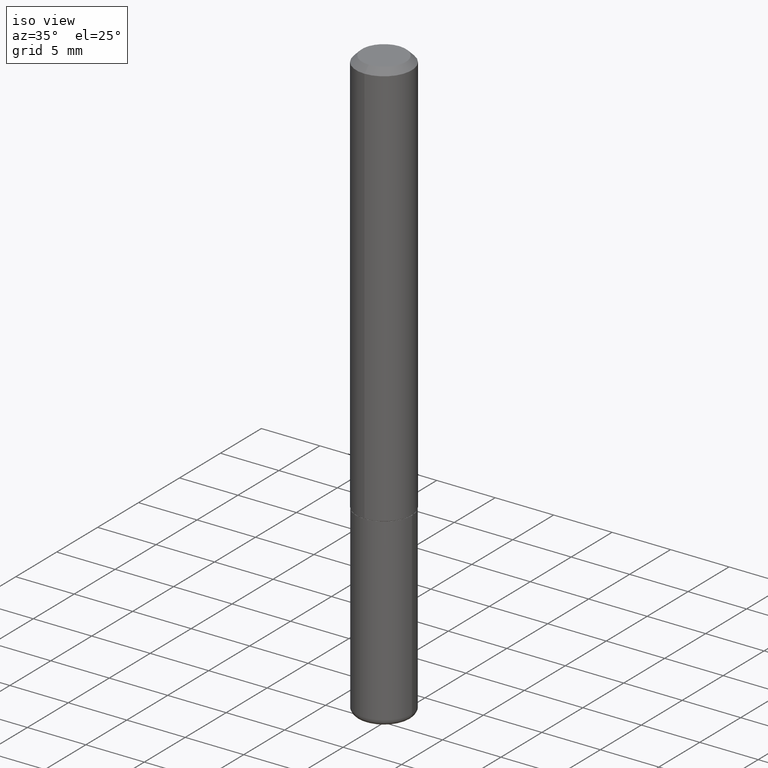
[diagram: clean part render]
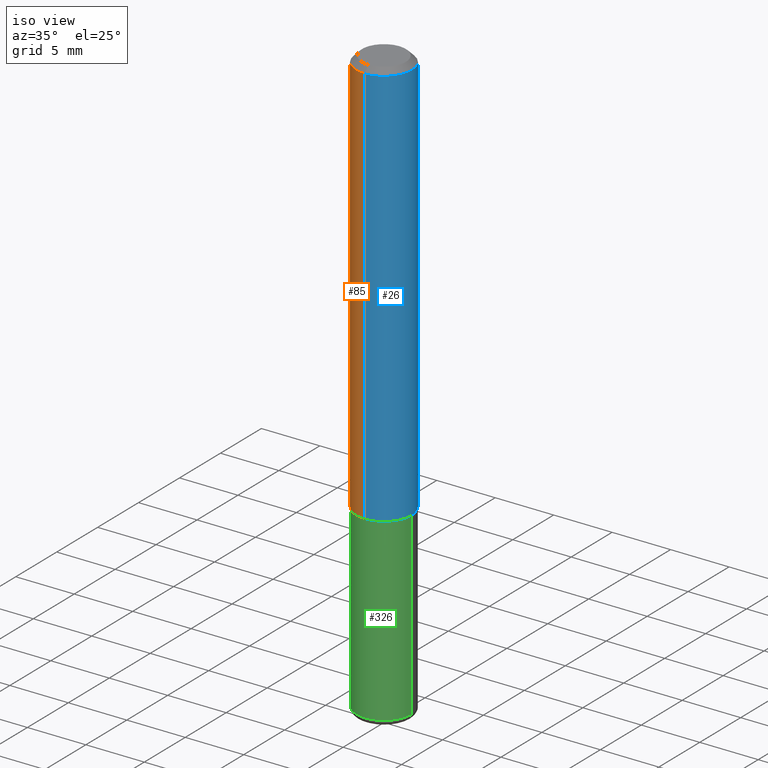
[diagram: same view with three faces highlighted in distinct colors, each labeled with its STEP entity id]
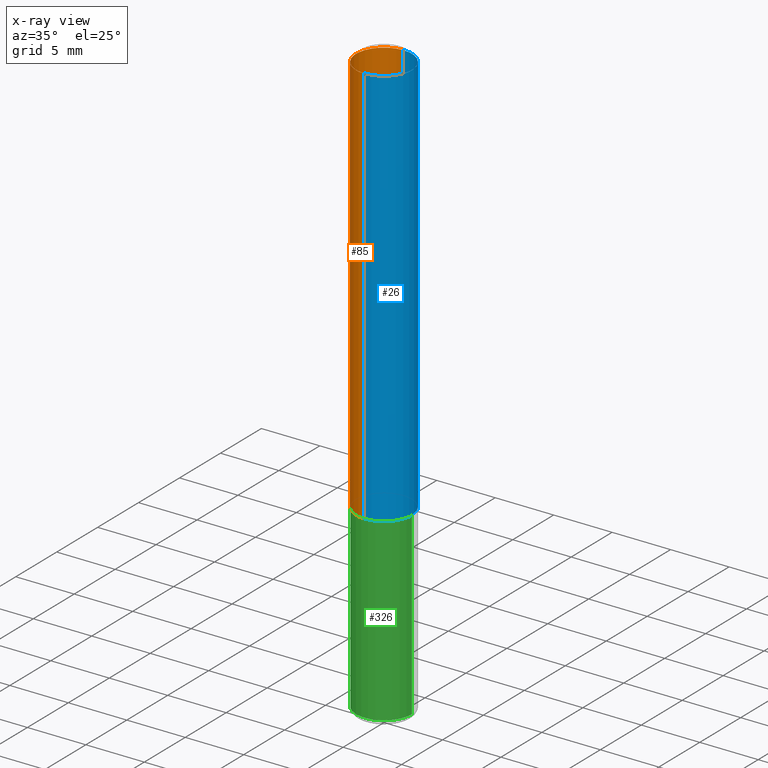
[diagram: x-ray of the same camera — body ghosted, the three highlighted faces saturated]
A machine part, iso view with three faces highlighted in distinct colors.
The next image is the same camera in x-ray (body ghosted, the three faces saturated) — at least one of them is partly hidden behind the body in this view.
Their STEP definitions:

[orange] entity #85 — the highlighted cylindrical surface (edge-blend (fillet) strip) has radius 2.3813 mm, axis along (-0, 0, 1).
#10 = EDGE_CURVE ( 'NONE', #324, #135, #134, .T. ) ;
#20 = CARTESIAN_POINT ( 'NONE',  ( -6.546527510330881944E-16, -0.09375000000000011102, 3.272963696799707431E-16 ) ) ;
#29 = VECTOR ( 'NONE', #310, 39.37007874015748143 ) ;
#31 = ORIENTED_EDGE ( 'NONE', *, *, #209, .T. ) ;
#43 = AXIS2_PLACEMENT_3D ( 'NONE', #378, #223, #414 ) ;
#80 = FACE_OUTER_BOUND ( 'NONE', #238, .T. ) ;
#85 = ADVANCED_FACE ( 'NONE', ( #80 ), #409, .T. ) ;
#86 = CARTESIAN_POINT ( 'NONE',  ( 6.661338147750946145E-16, 0.09375000000000011102, -3.272963696799707431E-16 ) ) ;
#103 = VERTEX_POINT ( 'NONE', #369 ) ;
#112 = DIRECTION ( 'NONE',  ( -2.445692304464510391E-29, 3.491161276586350254E-15, 1.000000000000000000 ) ) ;
#114 = DIRECTION ( 'NONE',  ( -6.982962677686265922E-15, -1.000000000000000000, 3.491161276586350648E-15 ) ) ;
#119 = EDGE_CURVE ( 'NONE', #153, #103, #403, .T. ) ;
#128 = AXIS2_PLACEMENT_3D ( 'NONE', #250, #307, #114 ) ;
#131 = EDGE_CURVE ( 'NONE', #135, #103, #207, .T. ) ;
#134 = LINE ( 'NONE', #86, #29 ) ;
#135 = VERTEX_POINT ( 'NONE', #246 ) ;
#153 = VERTEX_POINT ( 'NONE', #212 ) ;
#161 = AXIS2_PLACEMENT_3D ( 'NONE', #309, #112, #404 ) ;
#189 = ORIENTED_EDGE ( 'NONE', *, *, #119, .T. ) ;
#201 = ORIENTED_EDGE ( 'NONE', *, *, #131, .F. ) ;
#207 = CIRCLE ( 'NONE', #161, 0.09375000000000002776 ) ;
#209 = EDGE_CURVE ( 'NONE', #324, #153, #221, .T. ) ;
#212 = CARTESIAN_POINT ( 'NONE',  ( -6.546527510330552594E-16, -0.09375000000000499600, -1.373999999999999666 ) ) ;
#218 = DIRECTION ( 'NONE',  ( -2.445692304464510391E-29, 3.491161276586350254E-15, 1.000000000000000000 ) ) ;
#221 = CIRCLE ( 'NONE', #43, 0.09375000000000019429 ) ;
#223 = DIRECTION ( 'NONE',  ( -2.445692304464510391E-29, 3.491161276586350254E-15, 1.000000000000000000 ) ) ;
#238 = EDGE_LOOP ( 'NONE', ( #399, #31, #189, #201 ) ) ;
#246 = CARTESIAN_POINT ( 'NONE',  ( 6.546527510330880958E-16, 0.09374999999999995837, -0.02000000000000034736 ) ) ;
#250 = CARTESIAN_POINT ( 'NONE',  ( 0.000000000000000000, 0.000000000000000000, 0.000000000000000000 ) ) ;
#307 = DIRECTION ( 'NONE',  ( -2.445692304464510391E-29, 3.491161276586350254E-15, 1.000000000000000000 ) ) ;
#309 = CARTESIAN_POINT ( 'NONE',  ( 4.891384608929025126E-31, -6.982322553172705093E-17, -0.02000000000000001776 ) ) ;
#310 = DIRECTION ( 'NONE',  ( -2.445692304464510391E-29, 3.491161276586350254E-15, 1.000000000000000000 ) ) ;
#311 = CARTESIAN_POINT ( 'NONE',  ( 6.661338147751117722E-16, 0.09374999999999537870, -1.374000000000000110 ) ) ;
#324 = VERTEX_POINT ( 'NONE', #311 ) ;
#359 = VECTOR ( 'NONE', #218, 39.37007874015748143 ) ;
#369 = CARTESIAN_POINT ( 'NONE',  ( -6.431716872910806895E-16, -0.09375000000000009714, -0.01999999999999968817 ) ) ;
#378 = CARTESIAN_POINT ( 'NONE',  ( 3.360381226334237203E-29, -4.796855594029644698E-15, -1.373999999999999888 ) ) ;
#399 = ORIENTED_EDGE ( 'NONE', *, *, #10, .F. ) ;
#403 = LINE ( 'NONE', #20, #359 ) ;
#404 = DIRECTION ( 'NONE',  ( -6.982962677686265922E-15, -1.000000000000000000, 3.505871591869136910E-15 ) ) ;
#409 = CYLINDRICAL_SURFACE ( 'NONE', #128, 0.09375000000000011102 ) ;
#414 = DIRECTION ( 'NONE',  ( -6.982962677686266711E-15, -1.000000000000000000, 2.913971193241874850E-15 ) ) ;

[blue] entity #26 — the highlighted cylindrical surface (edge-blend (fillet) strip) has radius 2.3813 mm, axis along (-0, 0, 1).
#10 = EDGE_CURVE ( 'NONE', #324, #135, #134, .T. ) ;
#20 = CARTESIAN_POINT ( 'NONE',  ( -6.546527510330881944E-16, -0.09375000000000011102, 3.272963696799707431E-16 ) ) ;
#26 = ADVANCED_FACE ( 'NONE', ( #336 ), #83, .T. ) ;
#29 = VECTOR ( 'NONE', #310, 39.37007874015748143 ) ;
#30 = AXIS2_PLACEMENT_3D ( 'NONE', #54, #312, #291 ) ;
#35 = ORIENTED_EDGE ( 'NONE', *, *, #10, .T. ) ;
#49 = DIRECTION ( 'NONE',  ( -6.982962677686266711E-15, -1.000000000000000000, 2.913971193241874850E-15 ) ) ;
#54 = CARTESIAN_POINT ( 'NONE',  ( 4.891384608929025126E-31, -6.982322553172705093E-17, -0.02000000000000001776 ) ) ;
#81 = AXIS2_PLACEMENT_3D ( 'NONE', #279, #371, #49 ) ;
#83 = CYLINDRICAL_SURFACE ( 'NONE', #249, 0.09375000000000011102 ) ;
#86 = CARTESIAN_POINT ( 'NONE',  ( 6.661338147750946145E-16, 0.09375000000000011102, -3.272963696799707431E-16 ) ) ;
#100 = ORIENTED_EDGE ( 'NONE', *, *, #122, .T. ) ;
#103 = VERTEX_POINT ( 'NONE', #369 ) ;
#119 = EDGE_CURVE ( 'NONE', #153, #103, #403, .T. ) ;
#122 = EDGE_CURVE ( 'NONE', #153, #324, #374, .T. ) ;
#134 = LINE ( 'NONE', #86, #29 ) ;
#135 = VERTEX_POINT ( 'NONE', #246 ) ;
#137 = ORIENTED_EDGE ( 'NONE', *, *, #258, .F. ) ;
#142 = CARTESIAN_POINT ( 'NONE',  ( 0.000000000000000000, 0.000000000000000000, 0.000000000000000000 ) ) ;
#153 = VERTEX_POINT ( 'NONE', #212 ) ;
#198 = EDGE_LOOP ( 'NONE', ( #100, #35, #137, #230 ) ) ;
#212 = CARTESIAN_POINT ( 'NONE',  ( -6.546527510330552594E-16, -0.09375000000000499600, -1.373999999999999666 ) ) ;
#216 = DIRECTION ( 'NONE',  ( -2.445692304464510391E-29, 3.491161276586350254E-15, 1.000000000000000000 ) ) ;
#218 = DIRECTION ( 'NONE',  ( -2.445692304464510391E-29, 3.491161276586350254E-15, 1.000000000000000000 ) ) ;
#230 = ORIENTED_EDGE ( 'NONE', *, *, #119, .F. ) ;
#246 = CARTESIAN_POINT ( 'NONE',  ( 6.546527510330880958E-16, 0.09374999999999995837, -0.02000000000000034736 ) ) ;
#249 = AXIS2_PLACEMENT_3D ( 'NONE', #142, #216, #373 ) ;
#258 = EDGE_CURVE ( 'NONE', #103, #135, #308, .T. ) ;
#279 = CARTESIAN_POINT ( 'NONE',  ( 3.360381226334237203E-29, -4.796855594029644698E-15, -1.373999999999999888 ) ) ;
#291 = DIRECTION ( 'NONE',  ( -6.982962677686265922E-15, -1.000000000000000000, 3.505871591869136910E-15 ) ) ;
#308 = CIRCLE ( 'NONE', #30, 0.09375000000000002776 ) ;
#310 = DIRECTION ( 'NONE',  ( -2.445692304464510391E-29, 3.491161276586350254E-15, 1.000000000000000000 ) ) ;
#311 = CARTESIAN_POINT ( 'NONE',  ( 6.661338147751117722E-16, 0.09374999999999537870, -1.374000000000000110 ) ) ;
#312 = DIRECTION ( 'NONE',  ( -2.445692304464510391E-29, 3.491161276586350254E-15, 1.000000000000000000 ) ) ;
#324 = VERTEX_POINT ( 'NONE', #311 ) ;
#336 = FACE_OUTER_BOUND ( 'NONE', #198, .T. ) ;
#359 = VECTOR ( 'NONE', #218, 39.37007874015748143 ) ;
#369 = CARTESIAN_POINT ( 'NONE',  ( -6.431716872910806895E-16, -0.09375000000000009714, -0.01999999999999968817 ) ) ;
#371 = DIRECTION ( 'NONE',  ( -2.445692304464510391E-29, 3.491161276586350254E-15, 1.000000000000000000 ) ) ;
#373 = DIRECTION ( 'NONE',  ( -6.982962677686265922E-15, -1.000000000000000000, 3.491161276586350648E-15 ) ) ;
#374 = CIRCLE ( 'NONE', #81, 0.09375000000000019429 ) ;
#403 = LINE ( 'NONE', #20, #359 ) ;

[green] entity #326 — the highlighted cylindrical surface (edge-blend (fillet) strip) has radius 2.3813 mm, axis along (-0, 0, 1).
#8 = CIRCLE ( 'NONE', #51, 0.09375000000000002776 ) ;
#25 = CARTESIAN_POINT ( 'NONE',  ( -0.09375000000000001388, -5.190826131134282474E-15, -1.375000000000000000 ) ) ;
#51 = AXIS2_PLACEMENT_3D ( 'NONE', #276, #244, #362 ) ;
#91 = VERTEX_POINT ( 'NONE', #178 ) ;
#94 = DIRECTION ( 'NONE',  ( -2.445468806185136877E-29, 3.491481338843145188E-15, 1.000000000000000000 ) ) ;
#107 = EDGE_CURVE ( 'NONE', #340, #296, #120, .T. ) ;
#120 = LINE ( 'NONE', #143, #186 ) ;
#140 = ORIENTED_EDGE ( 'NONE', *, *, #107, .F. ) ;
#143 = CARTESIAN_POINT ( 'NONE',  ( -0.09375000000000002776, 6.661338147750941215E-16, -4.611501647113975397E-30 ) ) ;
#147 = CIRCLE ( 'NONE', #337, 0.09375000000000001388 ) ;
#150 = CARTESIAN_POINT ( 'NONE',  ( 0.000000000000000000, 0.000000000000000000, 0.000000000000000000 ) ) ;
#152 = EDGE_CURVE ( 'NONE', #340, #270, #8, .T. ) ;
#160 = ORIENTED_EDGE ( 'NONE', *, *, #265, .F. ) ;
#178 = CARTESIAN_POINT ( 'NONE',  ( 0.09375000000000001388, -5.455439591942412434E-15, -1.375000000000000000 ) ) ;
#183 = CARTESIAN_POINT ( 'NONE',  ( 3.362519608504562260E-29, -4.800786840909324930E-15, -1.375000000000000000 ) ) ;
#186 = VECTOR ( 'NONE', #282, 39.37007874015748143 ) ;
#193 = DIRECTION ( 'NONE',  ( -2.445468806185136597E-29, 3.491481338843145583E-15, 1.000000000000000000 ) ) ;
#229 = DIRECTION ( 'NONE',  ( 1.000000000000000000, -6.982962677686261189E-15, 0.000000000000000000 ) ) ;
#237 = EDGE_CURVE ( 'NONE', #270, #91, #257, .T. ) ;
#244 = DIRECTION ( 'NONE',  ( -2.445468806185136597E-29, 3.491481338843145583E-15, 1.000000000000000000 ) ) ;
#251 = AXIS2_PLACEMENT_3D ( 'NONE', #150, #286, #411 ) ;
#257 = LINE ( 'NONE', #290, #367 ) ;
#259 = CYLINDRICAL_SURFACE ( 'NONE', #251, 0.09375000000000002776 ) ;
#260 = CARTESIAN_POINT ( 'NONE',  ( 0.09374999999999995837, -7.567785801942515371E-15, -1.979999999999999982 ) ) ;
#265 = EDGE_CURVE ( 'NONE', #296, #91, #147, .T. ) ;
#269 = CARTESIAN_POINT ( 'NONE',  ( -0.09374999999999995837, -6.246999236134334732E-15, -1.979999999999999982 ) ) ;
#270 = VERTEX_POINT ( 'NONE', #260 ) ;
#276 = CARTESIAN_POINT ( 'NONE',  ( 4.842028236246570103E-29, -6.913133050909427867E-15, -1.979999999999999982 ) ) ;
#282 = DIRECTION ( 'NONE',  ( -2.445468806185136877E-29, 3.491481338843145188E-15, 1.000000000000000000 ) ) ;
#286 = DIRECTION ( 'NONE',  ( -2.445468806185136597E-29, 3.491481338843145583E-15, 1.000000000000000000 ) ) ;
#290 = CARTESIAN_POINT ( 'NONE',  ( 0.09375000000000002776, -6.546527510330876027E-16, 4.571415727308691207E-30 ) ) ;
#296 = VERTEX_POINT ( 'NONE', #25 ) ;
#319 = FACE_OUTER_BOUND ( 'NONE', #351, .T. ) ;
#326 = ADVANCED_FACE ( 'NONE', ( #319 ), #259, .T. ) ;
#337 = AXIS2_PLACEMENT_3D ( 'NONE', #183, #193, #229 ) ;
#340 = VERTEX_POINT ( 'NONE', #269 ) ;
#346 = ORIENTED_EDGE ( 'NONE', *, *, #237, .T. ) ;
#351 = EDGE_LOOP ( 'NONE', ( #140, #384, #346, #160 ) ) ;
#362 = DIRECTION ( 'NONE',  ( 1.000000000000000000, -6.982962677686270655E-15, 0.000000000000000000 ) ) ;
#367 = VECTOR ( 'NONE', #94, 39.37007874015748143 ) ;
#384 = ORIENTED_EDGE ( 'NONE', *, *, #152, .T. ) ;
#411 = DIRECTION ( 'NONE',  ( 1.000000000000000000, -6.982962677686265922E-15, 4.876176775795935793E-29 ) ) ;